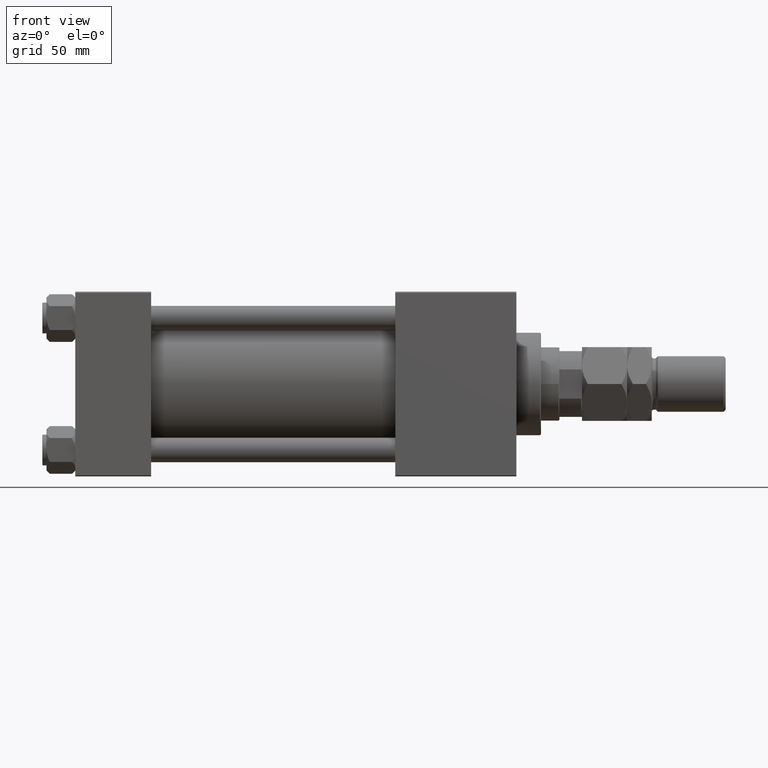
[diagram: clean part render]
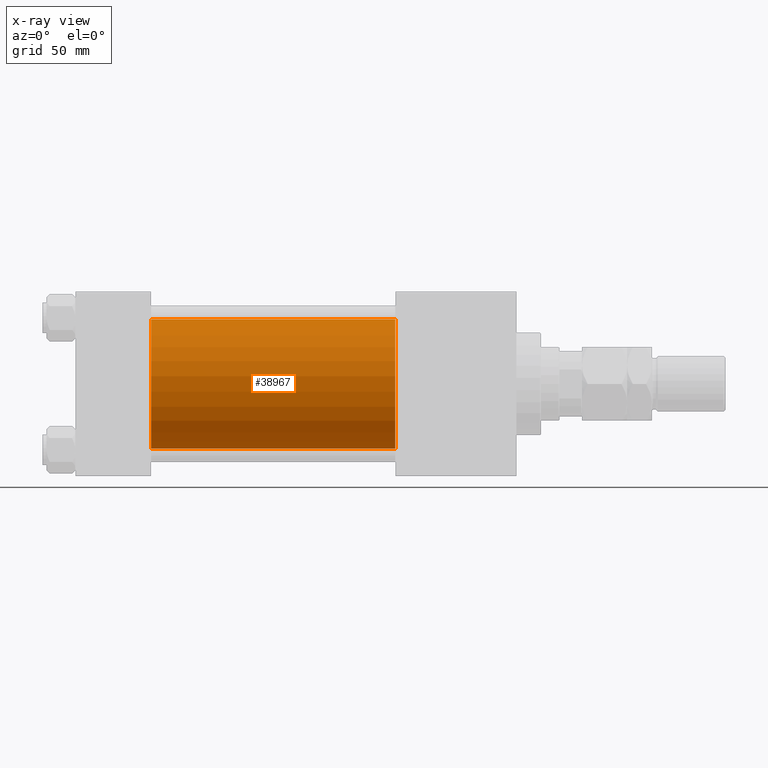
[diagram: x-ray — body ghosted, one internal face saturated and labeled with its STEP entity id]
A machine part, front view, then the same camera in x-ray: the body is ghosted and one INTERNAL B-rep face — a face not visible from any outside direction — is saturated and labeled: STEP entity #38967.
In plain terms, the highlighted cylindrical surface (partial cylindrical patch) has radius 31.5 mm, axis along (-1, -0, -0).
Its self-contained STEP definition (entity closure, byte-faithful):
#3480 = ORIENTED_EDGE ( 'NONE', *, *, #8329, .F. ) ;
#4074 = CARTESIAN_POINT ( 'NONE',  ( 156.0000000000000000, -2.602085213965210642E-15, 31.50000000000000000 ) ) ;
#6186 = EDGE_CURVE ( 'NONE', #33375, #43469, #31385, .T. ) ;
#6608 = CARTESIAN_POINT ( 'NONE',  ( 156.0000000000000000, 1.255552203348951850E-15, -31.50000000000000000 ) ) ;
#8329 = EDGE_CURVE ( 'NONE', #40513, #43469, #37269, .T. ) ;
#9678 = CARTESIAN_POINT ( 'NONE',  ( 37.00000000000000000, -2.602085213965210642E-15, 0.000000000000000000 ) ) ;
#9864 = CARTESIAN_POINT ( 'NONE',  ( 156.0000000000000000, -2.602085213965210642E-15, 0.000000000000000000 ) ) ;
#10023 = CARTESIAN_POINT ( 'NONE',  ( 37.00000000000000000, 1.255552203348951850E-15, -31.50000000000000000 ) ) ;
#10661 = DIRECTION ( 'NONE',  ( -1.000000000000000000, -0.000000000000000000, -0.000000000000000000 ) ) ;
#13094 = DIRECTION ( 'NONE',  ( 1.000000000000000000, 0.000000000000000000, 0.000000000000000000 ) ) ;
#14646 = AXIS2_PLACEMENT_3D ( 'NONE', #9678, #13094, #41435 ) ;
#15192 = LINE ( 'NONE', #18360, #28906 ) ;
#15979 = ORIENTED_EDGE ( 'NONE', *, *, #40263, .T. ) ;
#18360 = CARTESIAN_POINT ( 'NONE',  ( 156.0000000000000000, -2.602085213965210642E-15, 31.50000000000000000 ) ) ;
#22199 = FACE_OUTER_BOUND ( 'NONE', #30622, .T. ) ;
#25975 = DIRECTION ( 'NONE',  ( -1.000000000000000000, -0.000000000000000000, -0.000000000000000000 ) ) ;
#26091 = CARTESIAN_POINT ( 'NONE',  ( 156.0000000000000000, -2.602085213965210642E-15, 0.000000000000000000 ) ) ;
#26302 = VECTOR ( 'NONE', #36098, 1000.000000000000000 ) ;
#26521 = VERTEX_POINT ( 'NONE', #4074 ) ;
#26885 = DIRECTION ( 'NONE',  ( 1.000000000000000000, 0.000000000000000000, 0.000000000000000000 ) ) ;
#27623 = CYLINDRICAL_SURFACE ( 'NONE', #36706, 31.50000000000000000 ) ;
#28342 = AXIS2_PLACEMENT_3D ( 'NONE', #26091, #26885, #42079 ) ;
#28906 = VECTOR ( 'NONE', #25975, 1000.000000000000000 ) ;
#29100 = ORIENTED_EDGE ( 'NONE', *, *, #30188, .F. ) ;
#30035 = CIRCLE ( 'NONE', #28342, 31.50000000000000000 ) ;
#30188 = EDGE_CURVE ( 'NONE', #26521, #40513, #15192, .T. ) ;
#30622 = EDGE_LOOP ( 'NONE', ( #15979, #50098, #3480, #29100 ) ) ;
#31385 = LINE ( 'NONE', #47346, #26302 ) ;
#33375 = VERTEX_POINT ( 'NONE', #6608 ) ;
#36098 = DIRECTION ( 'NONE',  ( -1.000000000000000000, -0.000000000000000000, -0.000000000000000000 ) ) ;
#36706 = AXIS2_PLACEMENT_3D ( 'NONE', #9864, #10661, #42665 ) ;
#37269 = CIRCLE ( 'NONE', #14646, 31.50000000000000000 ) ;
#38967 = ADVANCED_FACE ( 'NONE', ( #22199 ), #27623, .F. ) ;
#40263 = EDGE_CURVE ( 'NONE', #26521, #33375, #30035, .T. ) ;
#40513 = VERTEX_POINT ( 'NONE', #47678 ) ;
#41435 = DIRECTION ( 'NONE',  ( 0.000000000000000000, 0.000000000000000000, -1.000000000000000000 ) ) ;
#42079 = DIRECTION ( 'NONE',  ( 0.000000000000000000, 0.000000000000000000, -1.000000000000000000 ) ) ;
#42665 = DIRECTION ( 'NONE',  ( 0.000000000000000000, 0.000000000000000000, 1.000000000000000000 ) ) ;
#43469 = VERTEX_POINT ( 'NONE', #10023 ) ;
#47346 = CARTESIAN_POINT ( 'NONE',  ( 156.0000000000000000, 1.255552203348951850E-15, -31.50000000000000000 ) ) ;
#47678 = CARTESIAN_POINT ( 'NONE',  ( 37.00000000000000000, -2.602085213965210642E-15, 31.50000000000000000 ) ) ;
#50098 = ORIENTED_EDGE ( 'NONE', *, *, #6186, .T. ) ;